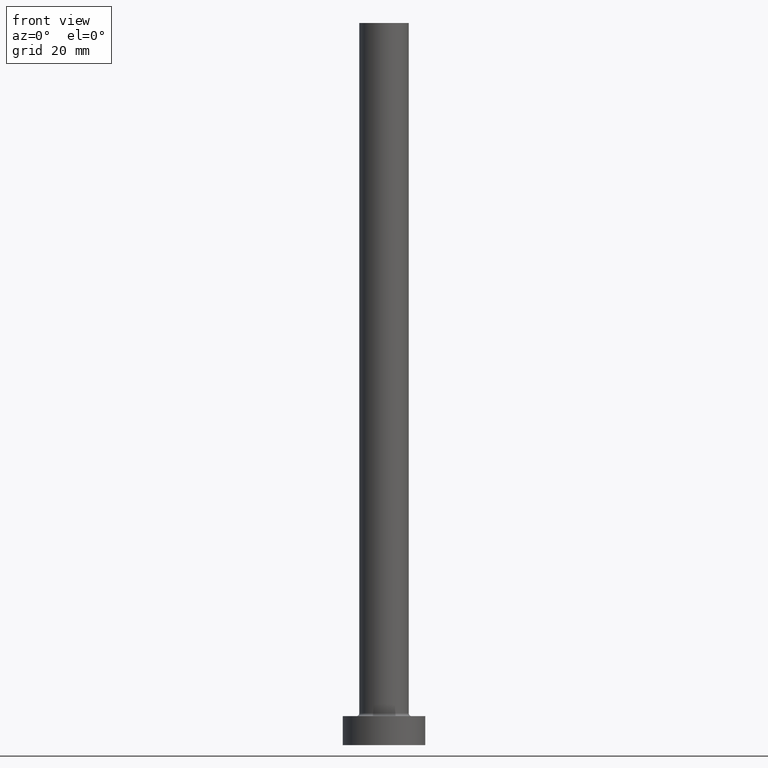
[diagram: clean part render]
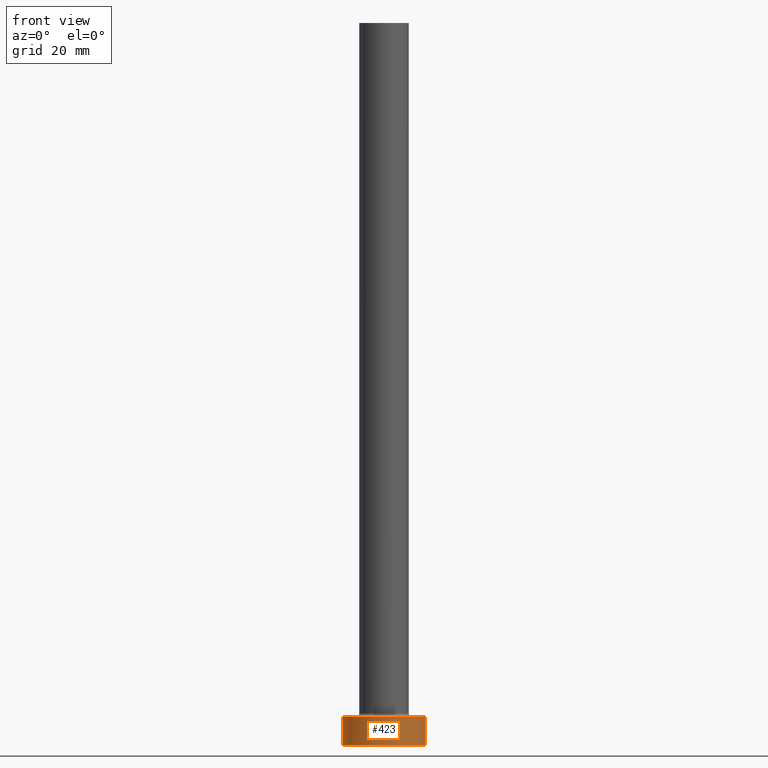
[diagram: same view with one face highlighted and labeled with its STEP entity id]
A machine part, front view. The second image highlights one B-rep face of the part: STEP entity #423.
In plain terms, the highlighted cylindrical surface (partial cylindrical patch) has radius 10 mm, axis along (-0, -0, -1).
Its self-contained STEP definition (entity closure, byte-faithful):
#1 = FACE_OUTER_BOUND ( 'NONE', #243, .T. ) ;
#2 = DIRECTION ( 'NONE',  ( 1.000000000000000000, 0.000000000000000000, 0.000000000000000000 ) ) ;
#10 = CARTESIAN_POINT ( 'NONE',  ( 10.00000000000000000, 1.224646799147353256E-15, 7.000000000000000000 ) ) ;
#28 = AXIS2_PLACEMENT_3D ( 'NONE', #337, #165, #298 ) ;
#51 = CIRCLE ( 'NONE', #28, 10.00000000000000000 ) ;
#53 = ORIENTED_EDGE ( 'NONE', *, *, #242, .F. ) ;
#74 = CARTESIAN_POINT ( 'NONE',  ( -10.00000000000000000, 0.000000000000000000, 0.000000000000000000 ) ) ;
#81 = CARTESIAN_POINT ( 'NONE',  ( -10.00000000000000000, 0.000000000000000000, 7.000000000000000000 ) ) ;
#95 = VERTEX_POINT ( 'NONE', #81 ) ;
#114 = AXIS2_PLACEMENT_3D ( 'NONE', #459, #152, #318 ) ;
#115 = CARTESIAN_POINT ( 'NONE',  ( 0.000000000000000000, 0.000000000000000000, 0.000000000000000000 ) ) ;
#120 = VERTEX_POINT ( 'NONE', #401 ) ;
#127 = ORIENTED_EDGE ( 'NONE', *, *, #390, .T. ) ;
#128 = CARTESIAN_POINT ( 'NONE',  ( 10.00000000000000000, 1.224646799147353256E-15, 7.000000000000000000 ) ) ;
#130 = ORIENTED_EDGE ( 'NONE', *, *, #439, .T. ) ;
#145 = LINE ( 'NONE', #218, #239 ) ;
#152 = DIRECTION ( 'NONE',  ( -0.000000000000000000, -0.000000000000000000, -1.000000000000000000 ) ) ;
#165 = DIRECTION ( 'NONE',  ( 0.000000000000000000, 0.000000000000000000, 1.000000000000000000 ) ) ;
#170 = VERTEX_POINT ( 'NONE', #10 ) ;
#186 = DIRECTION ( 'NONE',  ( 0.000000000000000000, 0.000000000000000000, 1.000000000000000000 ) ) ;
#188 = VECTOR ( 'NONE', #274, 1000.000000000000000 ) ;
#218 = CARTESIAN_POINT ( 'NONE',  ( -10.00000000000000000, 0.000000000000000000, 7.000000000000000000 ) ) ;
#239 = VECTOR ( 'NONE', #365, 1000.000000000000000 ) ;
#242 = EDGE_CURVE ( 'NONE', #95, #170, #51, .T. ) ;
#243 = EDGE_LOOP ( 'NONE', ( #405, #53, #127, #130 ) ) ;
#247 = EDGE_CURVE ( 'NONE', #170, #120, #449, .T. ) ;
#274 = DIRECTION ( 'NONE',  ( -0.000000000000000000, -0.000000000000000000, -1.000000000000000000 ) ) ;
#289 = CYLINDRICAL_SURFACE ( 'NONE', #114, 10.00000000000000000 ) ;
#298 = DIRECTION ( 'NONE',  ( 1.000000000000000000, 0.000000000000000000, 0.000000000000000000 ) ) ;
#300 = CIRCLE ( 'NONE', #375, 10.00000000000000000 ) ;
#318 = DIRECTION ( 'NONE',  ( -1.000000000000000000, 0.000000000000000000, 0.000000000000000000 ) ) ;
#337 = CARTESIAN_POINT ( 'NONE',  ( 0.000000000000000000, 0.000000000000000000, 7.000000000000000000 ) ) ;
#365 = DIRECTION ( 'NONE',  ( -0.000000000000000000, -0.000000000000000000, -1.000000000000000000 ) ) ;
#372 = VERTEX_POINT ( 'NONE', #74 ) ;
#375 = AXIS2_PLACEMENT_3D ( 'NONE', #115, #186, #2 ) ;
#390 = EDGE_CURVE ( 'NONE', #95, #372, #145, .T. ) ;
#401 = CARTESIAN_POINT ( 'NONE',  ( 10.00000000000000000, 1.224646799147353256E-15, 0.000000000000000000 ) ) ;
#405 = ORIENTED_EDGE ( 'NONE', *, *, #247, .F. ) ;
#423 = ADVANCED_FACE ( 'NONE', ( #1 ), #289, .T. ) ;
#439 = EDGE_CURVE ( 'NONE', #372, #120, #300, .T. ) ;
#449 = LINE ( 'NONE', #128, #188 ) ;
#459 = CARTESIAN_POINT ( 'NONE',  ( 0.000000000000000000, 0.000000000000000000, 7.000000000000000000 ) ) ;